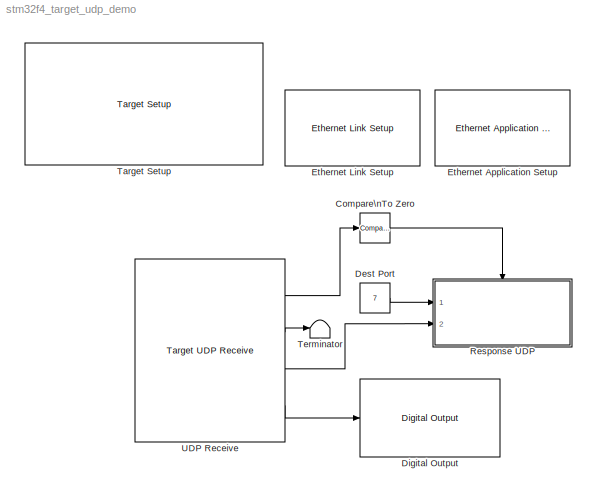
MODEL stm32f4_target_udp_demo
KIND model
CONFIG PreLoadFcn = waijung.modelPreload; % Required for working with Waijung Blockset. Do not remove.
BLOCK [Reference] Compare\nTo Zero  REF=simulink/Logic and Bit\nOperations/Compare\nTo Zero
  FunctionWithSeparateData = off
  LogicOutDataTypeMode = uint8
  Ports = [1, 1]
  RTWMemSecDataConstants = Inherit from model
  RTWMemSecDataInternal = Inherit from model
  RTWMemSecDataParameters = Inherit from model
  RTWMemSecFuncExecute = Inherit from model
  RTWMemSecFuncInitTerm = Inherit from model
  ShowPortLabels = FromPortIcon
  SourceBlock = simulink/Logic and Bit\nOperations/Compare\nTo Zero
  SourceType = Compare To Zero
  SystemSampleTime = -1
  ZeroCross = off
  relop = ==
BLOCK [Constant] Dest Port
  OutDataType = fixdt(1, 16)
  OutDataTypeMode = uint16
  OutDataTypeStr = uint16
  OutScaling = 2^0
  Value = 7
BLOCK [Reference] Digital Output  REF=stm32f4_io_lib/Digital Output
  Ports = [1]
  SourceBlock = stm32f4_io_lib/Digital Output
  SourceType = stm32f4_digital_output
  bitbandingstr = \n#define DigitalOutput_D15 Peripheral_BB(GPIOD->ODR, 15)  /* Output pin */
  blockid = DigitalOutput
  cinputportlabel = In1, In2
  coutputportlabel = 0
  enablecustomportlabel = off
  globalinit = off
  pinstr = GPIO_Pin_15
  port = D
  porttype = Push Pull
  porttypestr = PP
  sampletime = -1
  sampletimestr = 0.01
  speed = 100
  use_bitband = on
  use_pin0 = off
  use_pin1 = off
  use_pin10 = off
  use_pin11 = off
  use_pin12 = off
  use_pin13 = off
  use_pin14 = off
  use_pin15 = on
  use_pin2 = off
  use_pin3 = off
  use_pin4 = off
  use_pin5 = off
  use_pin6 = off
  use_pin7 = off
  use_pin8 = off
  use_pin9 = off
  usedpinarray = [0  0  0  0  0  0  0  0  0  0  0  0  0  0  0  1]
BLOCK [Reference] Ethernet Application Setup  REF=waijung_webserver/Ethernet Application Setup
  Ports = []
  SourceBlock = waijung_webserver/Ethernet Application Setup
  SourceType = waijung_ethernet_app
  blockid = EthernetApplicationSetup
  compat = 0
  conf = Setup
  dhcp = off
  gateway = 192.168.1.1
  inputportlabel = {}
  inputporttype = []
  inputportwidth = []
  ipaddress = 192.168.1.31
  macaddress = 02-00-00-00-00-00
  netmask = 255.255.255.0
  optionstring = [\"Dummy\",\"192\",\"168\",\"1\",\"31\",\"255\",\"255\",\"255\",\"0\",\"192\",\"168\",\"1\",\"1\",\"02\",\"00\",\"00\",\"00\",\"00\",\"00\",\"off\",\"10\"]
  outputportlabel = {}
  outputporttype = []
  outputportwidth = []
  portpinstr = 0
  sampletime = -1
  timerscaler = 10
BLOCK [Reference] Ethernet Link Setup  REF=waijung_webserver/Ethernet Link Setup
  Ports = []
  SourceBlock = waijung_webserver/Ethernet Link Setup
  SourceType = waijung_ethernet_inf
  autonegotiation = Enable
  blockid = EthernetLinkSetup
  chipaddress = 1
  compat = 0
  conf = Setup
  duplex = Full
  inputportlabel = {}
  inputporttype = []
  inputportwidth = []
  interfacepin = Profile #2
  optionstring = [\"xxx\",\"on\",\"on\",\"on\",\"off\",\"on\",\"off\",\"on\",\"on\",\"off\",\"on\",\"on\",\"on\",\"on\",\"on\",\"on\",\"on\",\"off\",\"on\",\"on\",\"on\",\"on\",\"on\",\"on\",\"on\",\"on\",\"on\",\"on\",\"H\",\"2\",\"A\",\"1\",\"A\",\"2\",\"H\",\"3\",\"A\",\"7\",\"H\",\"6\",\"H\",\"7\",\"N\",\"ot used\",\"E\",\"2\",\"B\",\"10\",\"B\",\"11\",\"B\",\"12\",\"G\",\"14\",\"C\",\"1\",\"C\",\"2\",\"C\",\"...<+70ch>
  outputportlabel = {}
  outputporttype = []
  outputportwidth = []
  pin_col = H3
  pin_crs = H2
  pin_dv = A7
  pin_mdc = C1
  pin_mdio = A2
  pin_pps = Not used
  pin_rxclk = A1
  pin_rxd0 = C4
  pin_rxd1 = C5
  pin_rxd2 = H6
  pin_rxd3 = H7
  pin_rxer = B10
  pin_txclk = C3
  pin_txd0 = B12
  pin_txd1 = G14
  pin_txd2 = C2
  pin_txd3 = E2
  pin_txen = B11
  portpinstr = H2,A1,A2,H3,A7,H6,H7,E2,B10,B11,B12,G14,C1,C2,C3,C4,C5
  sampletime = -1
  speed = 100
  wj_interfacetype = MII
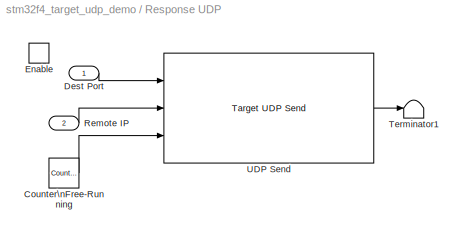
BLOCK [SubSystem] Response UDP
  FunctionWithSeparateData = off
  MaskHideContents = off
  MinAlgLoopOccurrences = off
  Opaque = off
  Ports = [2, 0, 1]
  PropExecContextOutsideSubsystem = off
  RTWSystemCode = Auto
  RequestExecContextInheritance = off
BLOCK [Reference] Response UDP/Counter\nFree-Running  REF=simulink/Sources/Counter\nFree-Running
  FunctionWithSeparateData = off
  NumBits = 32
  Ports = [0, 1]
  RTWMemSecDataConstants = Inherit from model
  RTWMemSecDataInternal = Inherit from model
  RTWMemSecDataParameters = Inherit from model
  RTWMemSecFuncExecute = Inherit from model
  RTWMemSecFuncInitTerm = Inherit from model
  ShowPortLabels = FromPortIcon
  SourceBlock = simulink/Sources/Counter\nFree-Running
  SourceType = Counter Free-Running
  SystemSampleTime = -1
  tsamp = -1
BLOCK [Inport] Response UDP/Dest Port
  IconDisplay = Port number
  OutDataType = fixdt(1, 16)
  OutScaling = 2^0
BLOCK [EnablePort] Response UDP/Enable
  Ports = []
BLOCK [Inport] Response UDP/Remote IP
  IconDisplay = Port number
  OutDataType = fixdt(1, 16)
  OutScaling = 2^0
  Port = 2
BLOCK [Terminator] Response UDP/Terminator1
BLOCK [Reference] Response UDP/UDP Send  REF=waijung_socket_lib/Target UDP Send
  Ports = [3, 1]
  SourceBlock = waijung_socket_lib/Target UDP Send
  SourceType = waijung_socket
  address = 192.168.1.33
  blockid = ResponseUDPUDPSend
  compat = 0
  conf = TargetSend
  datacount = 2
  datasource = Ports
  datatype = uint8
  echo = off
  inputportlabel = {'Port','IP','D0 uint32'}
  inputporttype = [5,3,7]
  inputportwidth = [1,4,1]
  options = [7,2,0,5000,0]
  optionstring = [\"UDP\",\"7\",\"192\",\"168\",\"1\",\"33\",\"Non-blocking\",\"PortData\",\"uint8_t\",\"2\",\"Send\",\"off\",\"on\",\"\",\"\",\"\",\"\",\"\",\"512\"]
  outputportlabel = {'Status'}
  outputporttype = [7]
  outputportwidth = []
  port = 7
  portpinstr = 0
  porttype_double = 0
  porttype_int16 = 0
  porttype_int32 = 0
  porttype_int8 = 0
  porttype_single = 0
  porttype_uint16 = 0
  porttype_uint32 = 1
  porttype_uint8 = 0
  protocol = UDP
  sampletime = inf
  streamsize = 512
  streamsource = ExtRAM
  timeout = 5
  transfer = Non-blocking
  variableipport = on
BLOCK [Reference] Target Setup  REF=stm32f4_device_config_lib/Target Setup
  Ports = []
  Priority = 100
  SourceBlock = stm32f4_device_config_lib/Target Setup
  SourceType = stm32f4_target_setup
  assemblercontrolstr = $(patsubst %, -I%, .) -mcpu=cortex-m4 -mthumb -mthumb-interwork -mfloat-abi=hard -mfpu=fpv4-sp-d16 -ffast-math -Wall -Wextra -Ofast -Wa,-amhls=$(<:.s=.lst) -D__STACK_SIZE=$(STACK_SIZE) -D__HEAP_SIZE=$(HEAP_SIZE)
  blockid = TargetSetup
  clockconfig = HSEOSC-8MHz
  compiler = GNU ARM
  compilercontrolstr = $(patsubst %, -I%, .) -mcpu=cortex-m4 -mthumb -mthumb-interwork -mfloat-abi=hard -mfpu=fpv4-sp-d16 -ffast-math -Wall -Wextra -Ofast
  editctrlstr = on
  enableautocompiledownload = on
  execprofile = None
  flashlength = 1024k
  flashorigin = 0x8000000
  fullchiperase = off
  hclk = 168000000
  heapsize = 0x2000
  hseval = 8000000
  lastprofileruart = 3
  linkercontrolstr = -T$(LD_SCRIPT) -g -Wl,-Map=$(MAP),--cref,--no-warn-mismatch -mcpu=cortex-m4 -mthumb -mthumb-interwork -mfloat-abi=hard -mfpu=fpv4-sp-d16 -specs=nosys.specs
  manualsetsampletime = off
  mcu = STM32F417IG (LQFP176)
  mcustr = STM32F417IG
  previous_compiler = GNU ARM
  profilerbaud = 500000
  profilerinitstr = 0.01,168000000,1680000,500000,0
  profilertxpin = D8
  profileruart = 3
  programmerinterface = ST-Link
  ramlength = 128k
  ramorigin = 0x20000000
  runafterdownload = on
  sampletime = 0.01
  showmemoryconfiguration = off
  stacksize = 0x2000
  system_stm32f4xx_c_path = <path>
  systickreloadvalue = 1680000
  useextram = off
BLOCK [Terminator] Terminator
BLOCK [Reference] UDP Receive  REF=waijung_socket_lib/Target UDP Receive
  Ports = [0, 4]
  SourceBlock = waijung_socket_lib/Target UDP Receive
  SourceType = waijung_socket
  address = 192.168.1.42
  blockid = UDPReceive
  compat = 0
  conf = TargetReceive
  datacount = 2
  datasource = Ports
  datatype = uint8
  echo = off
  inputportlabel = {}
  inputporttype = []
  inputportwidth = []
  options = [7,2,1,5000,0]
  optionstring = [\"UDP\",\"7\",\"192\",\"168\",\"1\",\"42\",\"Non-blocking\",\"PortData\",\"uint8_t\",\"2\",\"Receive\",\"off\",\"\",\"\",\"\",\"\",\"\",\"\",\"\"]
  outputportlabel = {'Status','Remote Port','Remote IP(1:4)','uint32 D0'}
  outputporttype = [7,5,3,7]
  outputportwidth = [1,1,4,]
  port = 7
  portpinstr = 0
  porttype_double = 0
  porttype_int16 = 0
  porttype_int32 = 0
  porttype_int8 = 0
  porttype_single = 0
  porttype_uint16 = 0
  porttype_uint32 = 1
  porttype_uint8 = 0
  protocol = UDP
  sampletime = inf
  timeout = 5
  transfer = Non-blocking
LINE Compare\nTo Zero:1 -> Response UDP:enable
LINE Dest Port:1 -> Response UDP:1
LINE Response UDP/Counter\nFree-Running:1 -> Response UDP/UDP Send:3
LINE Response UDP/Dest Port:1 -> Response UDP/UDP Send:1
LINE Response UDP/Remote IP:1 -> Response UDP/UDP Send:2
LINE Response UDP/UDP Send:1 -> Response UDP/Terminator1:1
LINE UDP Receive:1 -> Compare\nTo Zero:1
LINE UDP Receive:2 -> Terminator:1
LINE UDP Receive:3 -> Response UDP:2
LINE UDP Receive:4 -> Digital Output:1
note: 1 file-system path scrubbed to <path> (not preserved elsewhere — flat text is the only slx artifact)
